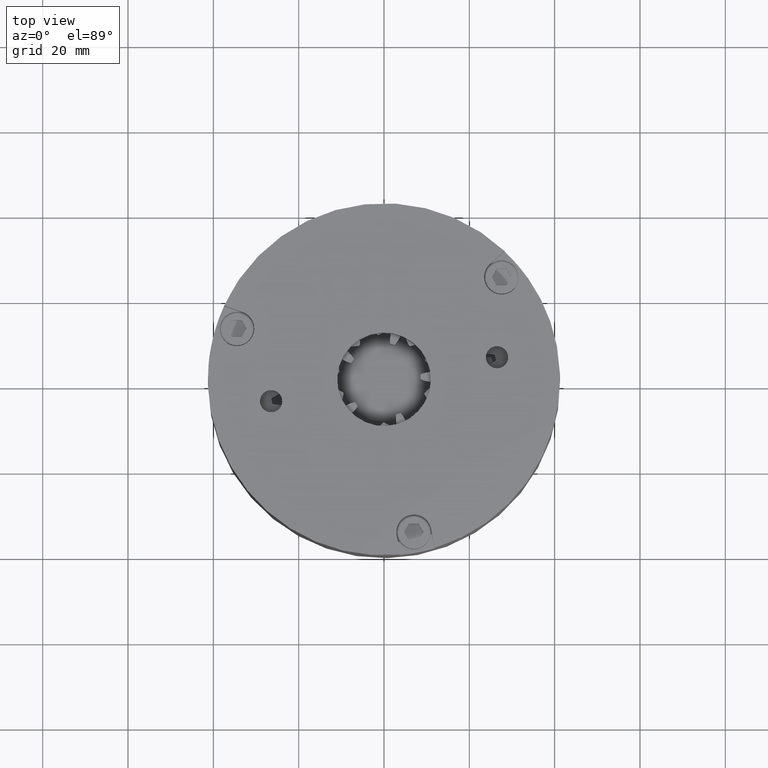
[diagram: clean part render]
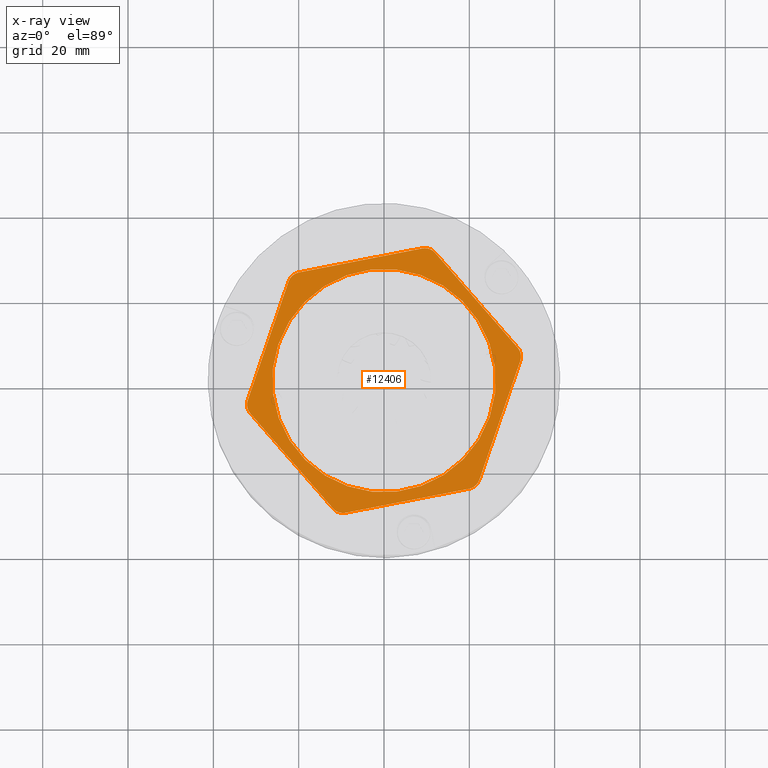
[diagram: x-ray — body ghosted, one internal face saturated and labeled with its STEP entity id]
A machine part, top view, then the same camera in x-ray: the body is ghosted and one INTERNAL B-rep face — a face not visible from any outside direction — is saturated and labeled: STEP entity #12406.
In plain terms, the highlighted planar face has unit normal (-0, -0, 1).
Its self-contained STEP definition (entity closure, byte-faithful):
#837 = CARTESIAN_POINT ( 'NONE',  ( 1.268727216544202300, 0.06249999999999940300, 0.1550000000000000300 ) ) ;
#966 = DIRECTION ( 'NONE',  ( -1.000000000000000000, 0.0000000000000000000, 0.0000000000000000000 ) ) ;
#967 = DIRECTION ( 'NONE',  ( 0.0000000000000000000, 0.0000000000000000000, -1.000000000000000000 ) ) ;
#968 = AXIS2_PLACEMENT_3D ( 'NONE', #974, #967, #966 ) ;
#970 = CARTESIAN_POINT ( 'NONE',  ( 1.285474041071147800, -8.793135729606847400E-016, 0.1550000000000000300 ) ) ;
#974 = CARTESIAN_POINT ( 'NONE',  ( 1.160474041071147600, -8.793135729606847400E-016, 0.1550000000000000300 ) ) ;
#977 = CIRCLE ( 'NONE', #968, 0.1250000000000000300 ) ;
#2625 = AXIS2_PLACEMENT_3D ( 'NONE', #2637, #2686, #2685 ) ;
#2637 = CARTESIAN_POINT ( 'NONE',  ( 0.0000000000000000000, 0.0000000000000000000, 0.1550000000000000300 ) ) ;
#2639 = CIRCLE ( 'NONE', #2625, 1.031250000000000000 ) ;
#2669 = CARTESIAN_POINT ( 'NONE',  ( 1.031250000000000000, 1.262917011620708200E-016, 0.1550000000000000300 ) ) ;
#2683 = CARTESIAN_POINT ( 'NONE',  ( -1.031250000000000000, 0.0000000000000000000, 0.1550000000000000300 ) ) ;
#2685 = DIRECTION ( 'NONE',  ( 1.000000000000000000, 0.0000000000000000000, 0.0000000000000000000 ) ) ;
#2686 = DIRECTION ( 'NONE',  ( -0.0000000000000000000, 0.0000000000000000000, -1.000000000000000000 ) ) ;
#2853 = CARTESIAN_POINT ( 'NONE',  ( 0.5802370205355730200, -1.130000000000000600, 0.1550000000000000300 ) ) ;
#2856 = CARTESIAN_POINT ( 'NONE',  ( 0.5802370205355739100, 1.130000000000000300, 0.1550000000000000300 ) ) ;
#2872 = CARTESIAN_POINT ( 'NONE',  ( -0.5802370205355743500, -1.129999999999999400, 0.1550000000000000300 ) ) ;
#2908 = DIRECTION ( 'NONE',  ( -1.000000000000000000, 7.327853244484789200E-016, 0.0000000000000000000 ) ) ;
#2909 = VECTOR ( 'NONE', #2908, 39.37007874015748100 ) ;
#2910 = CARTESIAN_POINT ( 'NONE',  ( 0.6524058041842762900, -1.130000000000000600, 0.1550000000000000300 ) ) ;
#2911 = LINE ( 'NONE', #2910, #2909 ) ;
#2926 = CARTESIAN_POINT ( 'NONE',  ( 1.304811608368554100, -9.713324465019080400E-016, 0.1550000000000000300 ) ) ;
#2927 = LINE ( 'NONE', #2926, #2974 ) ;
#2934 = CARTESIAN_POINT ( 'NONE',  ( 0.6884901960086280400, -1.067500000000000300, 0.1550000000000000300 ) ) ;
#2955 = CARTESIAN_POINT ( 'NONE',  ( 0.6884901960086289300, 1.067500000000000300, 0.1550000000000000300 ) ) ;
#2961 = CARTESIAN_POINT ( 'NONE',  ( 1.268727216544202300, -0.06250000000000105500, 0.1550000000000000300 ) ) ;
#2973 = DIRECTION ( 'NONE',  ( -0.5000000000000005600, -0.8660254037844382600, 0.0000000000000000000 ) ) ;
#2974 = VECTOR ( 'NONE', #2973, 39.37007874015748900 ) ;
#2981 = DIRECTION ( 'NONE',  ( 0.4999999999999993900, -0.8660254037844390400, -0.0000000000000000000 ) ) ;
#2982 = VECTOR ( 'NONE', #2981, 39.37007874015748900 ) ;
#2983 = CARTESIAN_POINT ( 'NONE',  ( 0.6524058041842774000, 1.130000000000000300, 0.1550000000000000300 ) ) ;
#2984 = LINE ( 'NONE', #2983, #2982 ) ;
#2985 = AXIS2_PLACEMENT_3D ( 'NONE', #3011, #3010, #3009 ) ;
#2990 = CARTESIAN_POINT ( 'NONE',  ( -1.268727216544202700, 0.06250000000000000000, 0.1550000000000000300 ) ) ;
#3009 = DIRECTION ( 'NONE',  ( -1.000000000000000000, 0.0000000000000000000, -0.0000000000000000000 ) ) ;
#3010 = DIRECTION ( 'NONE',  ( 0.0000000000000000000, 0.0000000000000000000, -1.000000000000000000 ) ) ;
#3011 = CARTESIAN_POINT ( 'NONE',  ( -0.6524058041842776300, -1.129999999999999400, 0.1550000000000000300 ) ) ;
#3012 = CARTESIAN_POINT ( 'NONE',  ( -1.268727216544202100, -0.06250000000000036100, 0.1550000000000000300 ) ) ;
#3014 = PLANE ( 'NONE',  #2985 ) ;
#3015 = FACE_BOUND ( 'NONE', #12407, .T. ) ;
#3017 = DIRECTION ( 'NONE',  ( -0.4999999999999998300, 0.8660254037844386000, 0.0000000000000000000 ) ) ;
#3018 = VECTOR ( 'NONE', #3017, 39.37007874015748900 ) ;
#3019 = CARTESIAN_POINT ( 'NONE',  ( -0.6524058041842775200, -1.129999999999999400, 0.1550000000000000300 ) ) ;
#3021 = CARTESIAN_POINT ( 'NONE',  ( -0.6884901960086279300, 1.067500000000000800, 0.1550000000000000300 ) ) ;
#3022 = CARTESIAN_POINT ( 'NONE',  ( -0.6884901960086291500, -1.067499999999999400, 0.1550000000000000300 ) ) ;
#3023 = LINE ( 'NONE', #3019, #3018 ) ;
#3024 = DIRECTION ( 'NONE',  ( 0.5000000000000002200, 0.8660254037844384900, 0.0000000000000000000 ) ) ;
#3025 = VECTOR ( 'NONE', #3024, 39.37007874015748900 ) ;
#3026 = FACE_OUTER_BOUND ( 'NONE', #12473, .T. ) ;
#3027 = CARTESIAN_POINT ( 'NONE',  ( -0.5802370205355731300, 1.130000000000000600, 0.1550000000000000300 ) ) ;
#3028 = CARTESIAN_POINT ( 'NONE',  ( -1.304811608368554100, 8.911628504795501200E-017, 0.1550000000000000300 ) ) ;
#3029 = LINE ( 'NONE', #3028, #3025 ) ;
#3043 = LINE ( 'NONE', #3101, #3100 ) ;
#3099 = DIRECTION ( 'NONE',  ( 1.000000000000000000, -1.046836177783541200E-016, 0.0000000000000000000 ) ) ;
#3100 = VECTOR ( 'NONE', #3099, 39.37007874015748100 ) ;
#3101 = CARTESIAN_POINT ( 'NONE',  ( -0.6524058041842764100, 1.130000000000000600, 0.1550000000000000300 ) ) ;
#3103 = DIRECTION ( 'NONE',  ( 0.0000000000000000000, 0.0000000000000000000, -1.000000000000000000 ) ) ;
#3104 = CARTESIAN_POINT ( 'NONE',  ( -0.5802370205355742400, -1.004999999999999400, 0.1550000000000000300 ) ) ;
#3106 = DIRECTION ( 'NONE',  ( 0.0000000000000000000, 0.0000000000000000000, -1.000000000000000000 ) ) ;
#3107 = AXIS2_PLACEMENT_3D ( 'NONE', #3161, #3103, #3156 ) ;
#3109 = DIRECTION ( 'NONE',  ( -1.000000000000000000, 0.0000000000000000000, 0.0000000000000000000 ) ) ;
#3110 = DIRECTION ( 'NONE',  ( 0.0000000000000000000, 0.0000000000000000000, -1.000000000000000000 ) ) ;
#3111 = AXIS2_PLACEMENT_3D ( 'NONE', #3117, #3110, #3109 ) ;
#3114 = CIRCLE ( 'NONE', #3153, 0.1250000000000000300 ) ;
#3116 = CARTESIAN_POINT ( 'NONE',  ( 0.0000000000000000000, 0.0000000000000000000, 0.1550000000000000300 ) ) ;
#3117 = CARTESIAN_POINT ( 'NONE',  ( 0.5802370205355730200, -1.005000000000000600, 0.1550000000000000300 ) ) ;
#3124 = CIRCLE ( 'NONE', #3160, 0.1250000000000000300 ) ;
#3127 = CIRCLE ( 'NONE', #3111, 0.1250000000000000300 ) ;
#3135 = DIRECTION ( 'NONE',  ( 1.000000000000000000, 0.0000000000000000000, 0.0000000000000000000 ) ) ;
#3136 = DIRECTION ( 'NONE',  ( -0.0000000000000000000, 0.0000000000000000000, -1.000000000000000000 ) ) ;
#3137 = AXIS2_PLACEMENT_3D ( 'NONE', #3116, #3136, #3135 ) ;
#3140 = DIRECTION ( 'NONE',  ( -1.000000000000000000, 0.0000000000000000000, 0.0000000000000000000 ) ) ;
#3141 = DIRECTION ( 'NONE',  ( 0.0000000000000000000, 0.0000000000000000000, -1.000000000000000000 ) ) ;
#3142 = AXIS2_PLACEMENT_3D ( 'NONE', #3158, #3141, #3140 ) ;
#3143 = CIRCLE ( 'NONE', #3137, 1.031250000000000000 ) ;
#3144 = DIRECTION ( 'NONE',  ( -1.000000000000000000, 0.0000000000000000000, 0.0000000000000000000 ) ) ;
#3145 = DIRECTION ( 'NONE',  ( 0.0000000000000000000, 0.0000000000000000000, -1.000000000000000000 ) ) ;
#3146 = CARTESIAN_POINT ( 'NONE',  ( -0.5802370205355731300, 1.005000000000000600, 0.1550000000000000300 ) ) ;
#3147 = AXIS2_PLACEMENT_3D ( 'NONE', #3146, #3145, #3144 ) ;
#3148 = CIRCLE ( 'NONE', #3142, 0.1250000000000001700 ) ;
#3150 = DIRECTION ( 'NONE',  ( -1.000000000000000000, 0.0000000000000000000, 0.0000000000000000000 ) ) ;
#3151 = DIRECTION ( 'NONE',  ( 0.0000000000000000000, 0.0000000000000000000, -1.000000000000000000 ) ) ;
#3152 = CARTESIAN_POINT ( 'NONE',  ( 0.5802370205355740200, 1.005000000000000300, 0.1550000000000000300 ) ) ;
#3153 = AXIS2_PLACEMENT_3D ( 'NONE', #3152, #3151, #3150 ) ;
#3155 = CIRCLE ( 'NONE', #3147, 0.1250000000000000300 ) ;
#3156 = DIRECTION ( 'NONE',  ( -1.000000000000000000, 0.0000000000000000000, 0.0000000000000000000 ) ) ;
#3157 = CIRCLE ( 'NONE', #3107, 0.1250000000000000300 ) ;
#3158 = CARTESIAN_POINT ( 'NONE',  ( -1.160474041071147600, 3.414809992080329000E-017, 0.1550000000000000300 ) ) ;
#3159 = DIRECTION ( 'NONE',  ( -1.000000000000000000, 0.0000000000000000000, 0.0000000000000000000 ) ) ;
#3160 = AXIS2_PLACEMENT_3D ( 'NONE', #3104, #3106, #3159 ) ;
#3161 = CARTESIAN_POINT ( 'NONE',  ( 1.160474041071147600, -8.793135729606847400E-016, 0.1550000000000000300 ) ) ;
#11348 = VERTEX_POINT ( 'NONE', #837 ) ;
#11418 = EDGE_CURVE ( 'NONE', #11348, #11419, #977, .T. ) ;
#11419 = VERTEX_POINT ( 'NONE', #970 ) ;
#12208 = EDGE_CURVE ( 'NONE', #12219, #12211, #2639, .T. ) ;
#12211 = VERTEX_POINT ( 'NONE', #2683 ) ;
#12219 = VERTEX_POINT ( 'NONE', #2669 ) ;
#12323 = VERTEX_POINT ( 'NONE', #2872 ) ;
#12328 = EDGE_CURVE ( 'NONE', #12331, #12323, #2911, .T. ) ;
#12330 = VERTEX_POINT ( 'NONE', #2856 ) ;
#12331 = VERTEX_POINT ( 'NONE', #2853 ) ;
#12361 = EDGE_CURVE ( 'NONE', #12368, #12373, #2927, .T. ) ;
#12368 = VERTEX_POINT ( 'NONE', #2961 ) ;
#12373 = VERTEX_POINT ( 'NONE', #2934 ) ;
#12374 = VERTEX_POINT ( 'NONE', #2955 ) ;
#12389 = EDGE_CURVE ( 'NONE', #12374, #11348, #2984, .T. ) ;
#12398 = EDGE_CURVE ( 'NONE', #12399, #12403, #3029, .T. ) ;
#12399 = VERTEX_POINT ( 'NONE', #2990 ) ;
#12401 = EDGE_CURVE ( 'NONE', #12411, #12418, #3023, .T. ) ;
#12403 = VERTEX_POINT ( 'NONE', #3021 ) ;
#12405 = VERTEX_POINT ( 'NONE', #3027 ) ;
#12406 = ADVANCED_FACE ( 'NONE', ( #3015, #3026 ), #3014, .T. ) ;
#12407 = EDGE_LOOP ( 'NONE', ( #12468, #12474 ) ) ;
#12411 = VERTEX_POINT ( 'NONE', #3022 ) ;
#12418 = VERTEX_POINT ( 'NONE', #3012 ) ;
#12428 = EDGE_CURVE ( 'NONE', #12405, #12330, #3043, .T. ) ;
#12449 = EDGE_CURVE ( 'NONE', #12373, #12331, #3127, .T. ) ;
#12452 = EDGE_CURVE ( 'NONE', #12323, #12411, #3124, .T. ) ;
#12453 = ORIENTED_EDGE ( 'NONE', *, *, #12328, .T. ) ;
#12454 = ORIENTED_EDGE ( 'NONE', *, *, #12452, .T. ) ;
#12455 = ORIENTED_EDGE ( 'NONE', *, *, #12459, .T. ) ;
#12456 = ORIENTED_EDGE ( 'NONE', *, *, #12458, .T. ) ;
#12457 = ORIENTED_EDGE ( 'NONE', *, *, #12361, .T. ) ;
#12458 = EDGE_CURVE ( 'NONE', #11419, #12368, #3157, .T. ) ;
#12459 = EDGE_CURVE ( 'NONE', #12330, #12374, #3114, .T. ) ;
#12460 = ORIENTED_EDGE ( 'NONE', *, *, #12389, .T. ) ;
#12461 = ORIENTED_EDGE ( 'NONE', *, *, #12449, .T. ) ;
#12462 = ORIENTED_EDGE ( 'NONE', *, *, #11418, .T. ) ;
#12465 = ORIENTED_EDGE ( 'NONE', *, *, #12428, .T. ) ;
#12466 = EDGE_CURVE ( 'NONE', #12403, #12405, #3155, .T. ) ;
#12468 = ORIENTED_EDGE ( 'NONE', *, *, #12476, .F. ) ;
#12469 = ORIENTED_EDGE ( 'NONE', *, *, #12401, .T. ) ;
#12470 = ORIENTED_EDGE ( 'NONE', *, *, #12466, .T. ) ;
#12471 = EDGE_CURVE ( 'NONE', #12418, #12399, #3148, .T. ) ;
#12472 = ORIENTED_EDGE ( 'NONE', *, *, #12398, .T. ) ;
#12473 = EDGE_LOOP ( 'NONE', ( #12469, #12475, #12472, #12470, #12465, #12455, #12460, #12462, #12456, #12457, #12461, #12453, #12454 ) ) ;
#12474 = ORIENTED_EDGE ( 'NONE', *, *, #12208, .F. ) ;
#12475 = ORIENTED_EDGE ( 'NONE', *, *, #12471, .T. ) ;
#12476 = EDGE_CURVE ( 'NONE', #12211, #12219, #3143, .T. ) ;